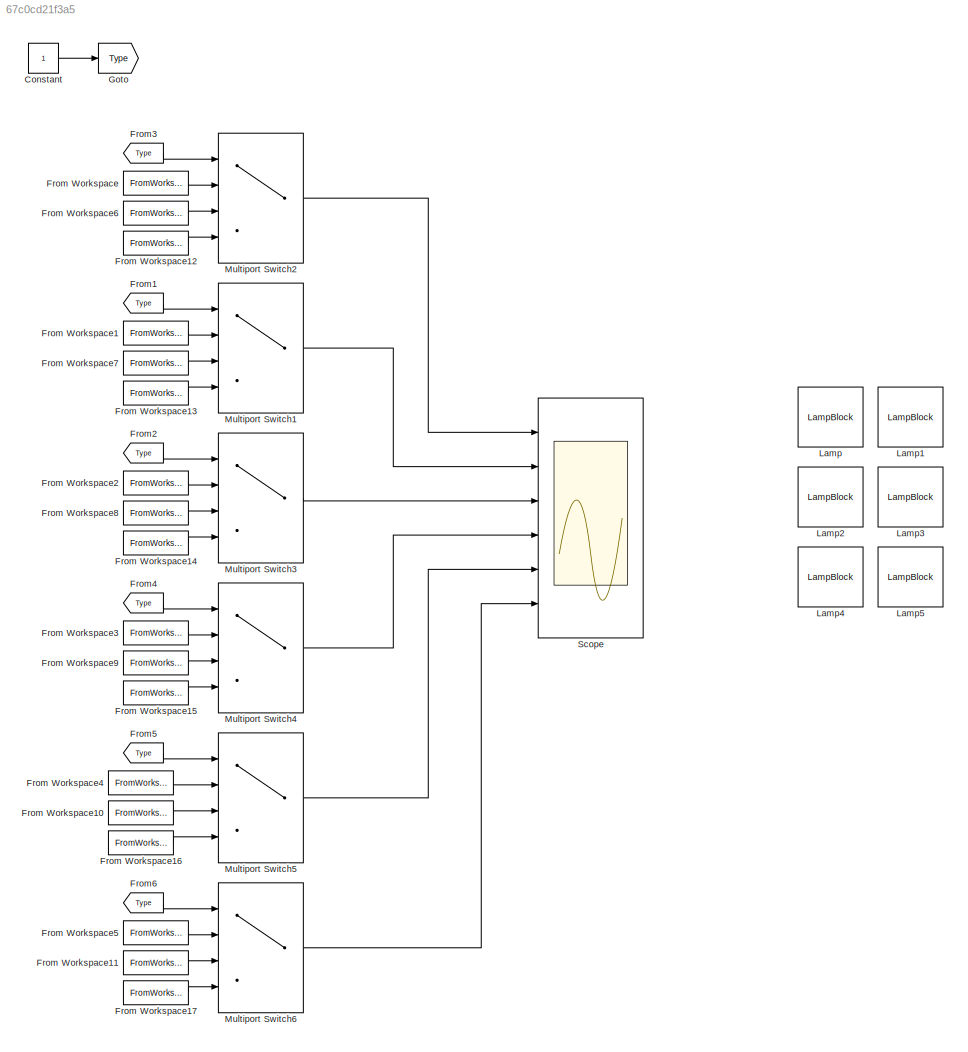
MODEL slx_67c0cd21f3a5
KIND model
CONFIG AbsTol = auto
CONFIG EnableMultiTasking = off
CONFIG FixedStep = auto
CONFIG MaxStep = auto
CONFIG MinStep = auto
CONFIG RelTol = 1e-3
CONFIG SampleTimeConstraint = Unconstrained
CONFIG Solver = VariableStepAuto
CONFIG SolverName = VariableStepAuto
CONFIG StartTime = 0.0
CONFIG StopTime = Tfinal
BLOCK [Constant] Constant
BLOCK [FromWorkspace] From Workspace
  SampleTime = 0
  VariableName = TL1bs
  ZeroCross = on
BLOCK [FromWorkspace] From Workspace1
  SampleTime = 0
  VariableName = TR1bs
  ZeroCross = on
BLOCK [FromWorkspace] From Workspace10
  SampleTime = 0
  VariableName = BL2bs
  ZeroCross = on
BLOCK [FromWorkspace] From Workspace11
  SampleTime = 0
  VariableName = BR2bs
  ZeroCross = on
BLOCK [FromWorkspace] From Workspace12
  SampleTime = 0
  VariableName = TL3bs
  ZeroCross = on
BLOCK [FromWorkspace] From Workspace13
  SampleTime = 0
  VariableName = TR3bs
  ZeroCross = on
BLOCK [FromWorkspace] From Workspace14
  SampleTime = 0
  VariableName = ML3bs
  ZeroCross = on
BLOCK [FromWorkspace] From Workspace15
  SampleTime = 0
  VariableName = MR3bs
  ZeroCross = on
BLOCK [FromWorkspace] From Workspace16
  SampleTime = 0
  VariableName = BL3bs
  ZeroCross = on
BLOCK [FromWorkspace] From Workspace17
  SampleTime = 0
  VariableName = BR3bs
  ZeroCross = on
BLOCK [FromWorkspace] From Workspace2
  SampleTime = 0
  VariableName = ML1bs
  ZeroCross = on
BLOCK [FromWorkspace] From Workspace3
  SampleTime = 0
  VariableName = MR1bs
  ZeroCross = on
BLOCK [FromWorkspace] From Workspace4
  SampleTime = 0
  VariableName = BL1bs
  ZeroCross = on
BLOCK [FromWorkspace] From Workspace5
  SampleTime = 0
  VariableName = BR1bs
  ZeroCross = on
BLOCK [FromWorkspace] From Workspace6
  SampleTime = 0
  VariableName = TL2bs
  ZeroCross = on
BLOCK [FromWorkspace] From Workspace7
  SampleTime = 0
  VariableName = TR2bs
  ZeroCross = on
BLOCK [FromWorkspace] From Workspace8
  SampleTime = 0
  VariableName = ML2bs
  ZeroCross = on
BLOCK [FromWorkspace] From Workspace9
  SampleTime = 0
  VariableName = MR2bs
  ZeroCross = on
BLOCK [From] From1
  GotoTag = Type
BLOCK [From] From2
  GotoTag = Type
BLOCK [From] From3
  GotoTag = Type
BLOCK [From] From4
  GotoTag = Type
BLOCK [From] From5
  GotoTag = Type
BLOCK [From] From6
  GotoTag = Type
BLOCK [Goto] Goto
  GotoTag = Type
BLOCK [LampBlock] Lamp
  LabelPosition = Hide
BLOCK [LampBlock] Lamp1
  LabelPosition = Hide
BLOCK [LampBlock] Lamp2
  LabelPosition = Hide
BLOCK [LampBlock] Lamp3
  LabelPosition = Hide
BLOCK [LampBlock] Lamp4
  LabelPosition = Hide
BLOCK [LampBlock] Lamp5
  LabelPosition = Hide
BLOCK [MultiPortSwitch] Multiport Switch1
  InputSameDT = off
  Ports = [4, 1]
  SaturateOnIntegerOverflow = off
BLOCK [MultiPortSwitch] Multiport Switch2
  InputSameDT = off
  Ports = [4, 1]
  SaturateOnIntegerOverflow = off
BLOCK [MultiPortSwitch] Multiport Switch3
  InputSameDT = off
  Ports = [4, 1]
  SaturateOnIntegerOverflow = off
BLOCK [MultiPortSwitch] Multiport Switch4
  InputSameDT = off
  Ports = [4, 1]
  SaturateOnIntegerOverflow = off
BLOCK [MultiPortSwitch] Multiport Switch5
  InputSameDT = off
  Ports = [4, 1]
  SaturateOnIntegerOverflow = off
BLOCK [MultiPortSwitch] Multiport Switch6
  InputSameDT = off
  Ports = [4, 1]
  SaturateOnIntegerOverflow = off
BLOCK [Scope] Scope
  Floating = off
  NumInputPorts = 6
  Ports = [6]
  ScopeSpecificationString = Simulink.scopes.TimeScopeBlockCfg('CurrentConfiguration', extmgr.ConfigurationSet(extmgr.Configuration('Core','General UI',true),extmgr.Configuration('Core','Source UI',true),extmgr.Configuration('Sources','WiredSimulink',true),extmgr.Configuration('Visuals','Time Domain',true,'SerializedDisplays',{struct('MinYLimReal','-0.125','MaxYLimReal','1.125','YLabelReal','','MinYLimMag','0.00000','MaxYLimM...<+1458ch>
LINE Constant:1 -> Goto:1
LINE From Workspace10:1 -> Multiport Switch5:3
LINE From Workspace11:1 -> Multiport Switch6:3
LINE From Workspace12:1 -> Multiport Switch2:4
LINE From Workspace13:1 -> Multiport Switch1:4
LINE From Workspace14:1 -> Multiport Switch3:4
LINE From Workspace15:1 -> Multiport Switch4:4
LINE From Workspace16:1 -> Multiport Switch5:4
LINE From Workspace17:1 -> Multiport Switch6:4
LINE From Workspace1:1 -> Multiport Switch1:2
LINE From Workspace2:1 -> Multiport Switch3:2
LINE From Workspace3:1 -> Multiport Switch4:2
LINE From Workspace4:1 -> Multiport Switch5:2
LINE From Workspace5:1 -> Multiport Switch6:2
LINE From Workspace6:1 -> Multiport Switch2:3
LINE From Workspace7:1 -> Multiport Switch1:3
LINE From Workspace8:1 -> Multiport Switch3:3
LINE From Workspace9:1 -> Multiport Switch4:3
LINE From Workspace:1 -> Multiport Switch2:2
LINE From1:1 -> Multiport Switch1:1
LINE From2:1 -> Multiport Switch3:1
LINE From3:1 -> Multiport Switch2:1
LINE From4:1 -> Multiport Switch4:1
LINE From5:1 -> Multiport Switch5:1
LINE From6:1 -> Multiport Switch6:1
LINE Multiport Switch1:1 -> Scope:2
LINE Multiport Switch2:1 -> Scope:1
LINE Multiport Switch3:1 -> Scope:3
LINE Multiport Switch4:1 -> Scope:4
LINE Multiport Switch5:1 -> Scope:5
LINE Multiport Switch6:1 -> Scope:6
